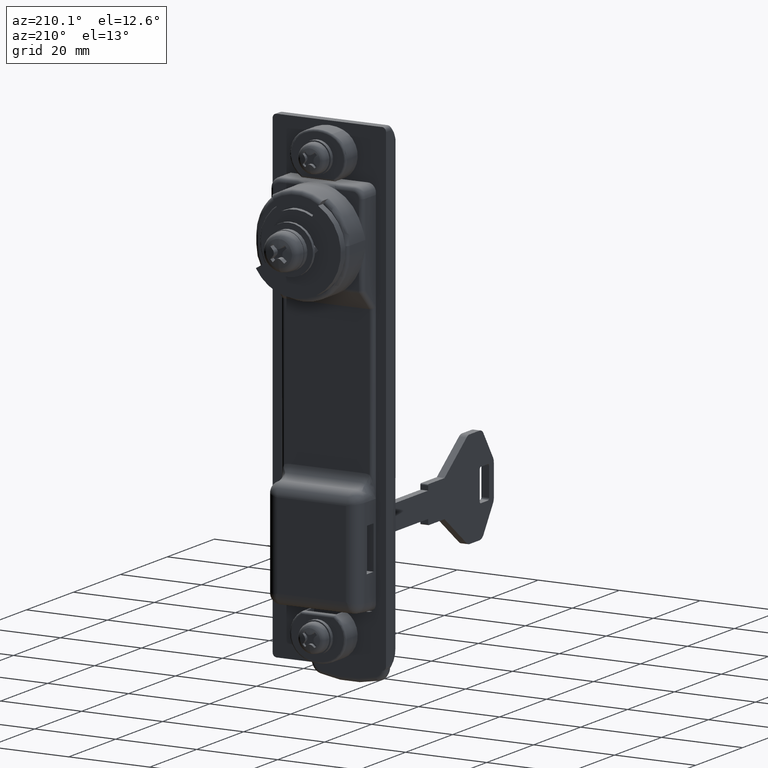
[diagram: clean part render]
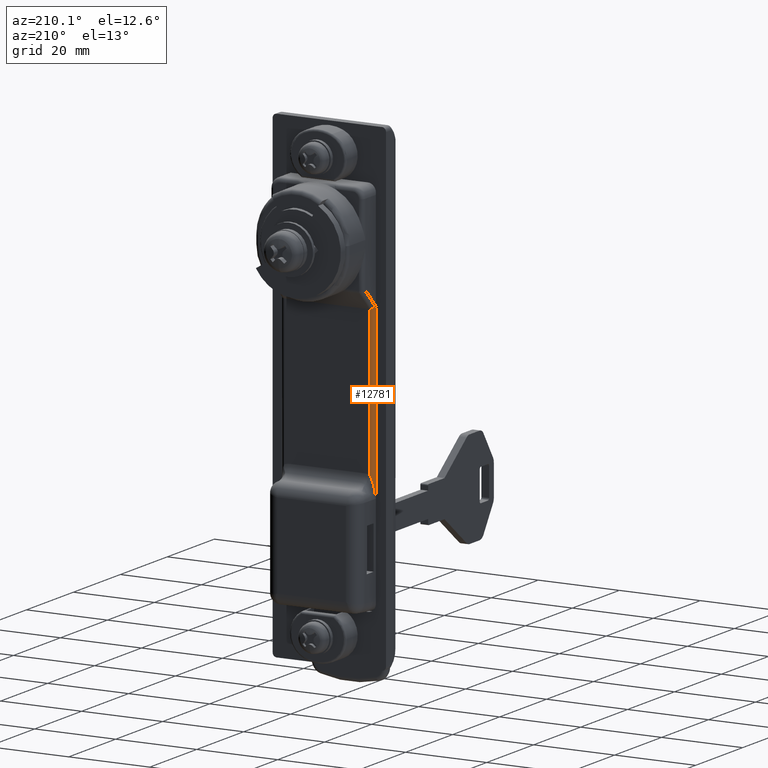
[diagram: same view with one face highlighted and labeled with its STEP entity id]
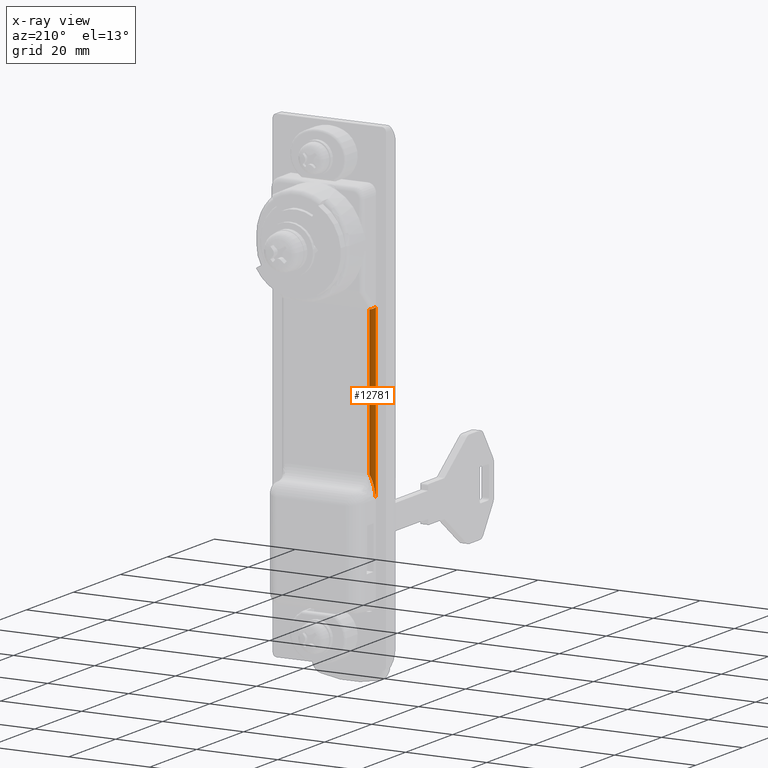
[diagram: x-ray of the same camera — body ghosted, the highlighted face saturated]
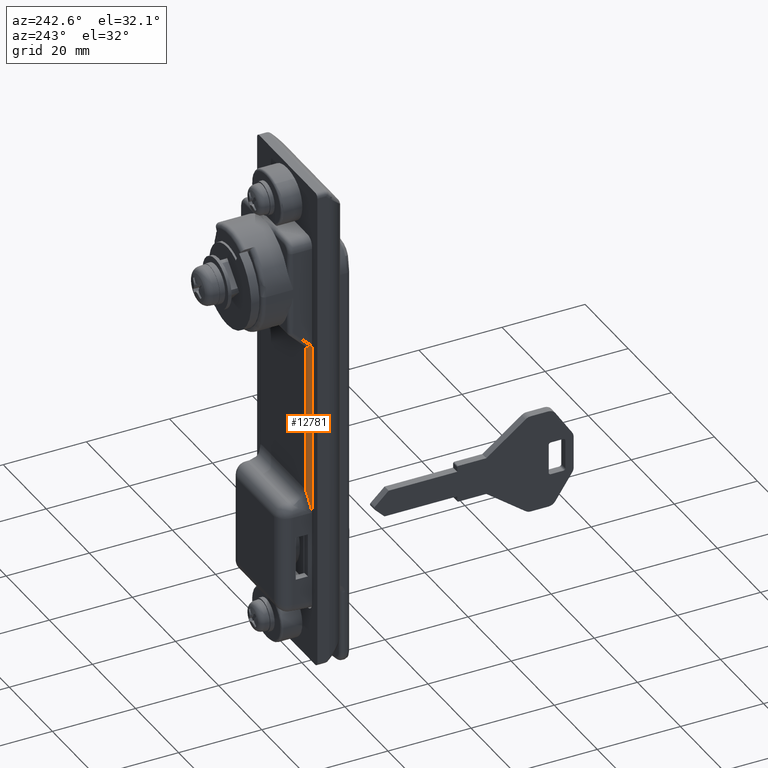
[diagram: same view with one face highlighted and labeled with its STEP entity id]
A machine part, auxiliary view. The second image highlights one B-rep face of the part: STEP entity #12781.
The next image is the same camera in x-ray: the body ghosted, the highlighted face saturated — about 0% of this face is hidden behind the body in this view.
A second angle (auxiliary view) of the same face is appended — the face is thin or edge-on in the first view.
In plain terms, the highlighted cylindrical surface (edge-blend (fillet) strip) has radius 1 mm, axis along (0, 0, 1).
Its self-contained STEP definition (entity closure, byte-faithful):
#1941 = B_SPLINE_CURVE_WITH_KNOTS ( 'NONE', 3,
 ( #2036, #2035, #2034, #2033, #2032, #2031, #2030, #2029, #2028, #2027, #2026, #2025, #2024, #2023, #2022, #2021 ),
 .UNSPECIFIED., .F., .F.,
 ( 4, 2, 2, 2, 2, 2, 2, 4 ),
 ( 0.0000000000000000000, 0.0003451666084807940100, 0.0006903332169615880200, 0.001380666433923157200, 0.002761332867846298800, 0.004141999301769440500, 0.004832332518731011200, 0.005522665735692581900 ),
 .UNSPECIFIED. ) ;
#1942 = DIRECTION ( 'NONE',  ( 1.000000000000000000, 0.0000000000000000000, 0.0000000000000000000 ) ) ;
#1943 = DIRECTION ( 'NONE',  ( 0.0000000000000000000, 0.0000000000000000000, 1.000000000000000000 ) ) ;
#1944 = CARTESIAN_POINT ( 'NONE',  ( -16.49999999999920100, 10.50000000000000000, -53.99999999998869500 ) ) ;
#1945 = AXIS2_PLACEMENT_3D ( 'NONE', #1944, #1943, #1942 ) ;
#1946 = CYLINDRICAL_SURFACE ( 'NONE', #1945, 1.000000000000000900 ) ;
#1947 = FACE_OUTER_BOUND ( 'NONE', #12782, .T. ) ;
#2021 = CARTESIAN_POINT ( 'NONE',  ( -16.49999999999920100, 11.50000000000000000, -56.49999999998869500 ) ) ;
#2022 = CARTESIAN_POINT ( 'NONE',  ( -16.45201853504928700, 11.50000000000000000, -56.27494691660308500 ) ) ;
#2023 = CARTESIAN_POINT ( 'NONE',  ( -16.40349598685585900, 11.49651994399057600, -56.04735850202734300 ) ) ;
#2024 = CARTESIAN_POINT ( 'NONE',  ( -16.30725553604736400, 11.48245335509614200, -55.59496858964386200 ) ) ;
#2025 = CARTESIAN_POINT ( 'NONE',  ( -16.25929079596236400, 11.47187425106661800, -55.36901571028513300 ) ) ;
#2026 = CARTESIAN_POINT ( 'NONE',  ( -16.11622597313031900, 11.42878383894113300, -54.69186257180442800 ) ) ;
#2027 = CARTESIAN_POINT ( 'NONE',  ( -16.02181957658981700, 11.38531396471272400, -54.24118404536052700 ) ) ;
#2028 = CARTESIAN_POINT ( 'NONE',  ( -15.83852843561751900, 11.25821679153246200, -53.34252863741024000 ) ) ;
#2029 = CARTESIAN_POINT ( 'NONE',  ( -15.74951224143548600, 11.17636426919900600, -52.89628863103502700 ) ) ;
#2030 = CARTESIAN_POINT ( 'NONE',  ( -15.62933363390922300, 10.99710683364890900, -52.23543367442628200 ) ) ;
#2031 = CARTESIAN_POINT ( 'NONE',  ( -15.59165097432712200, 10.92833137264998200, -52.01773175190524500 ) ) ;
#2032 = CARTESIAN_POINT ( 'NONE',  ( -15.54426402076173700, 10.79784252097372600, -51.69915898922860000 ) ) ;
#2033 = CARTESIAN_POINT ( 'NONE',  ( -15.53003573429299600, 10.74967070722284900, -51.59434832315238100 ) ) ;
#2034 = CARTESIAN_POINT ( 'NONE',  ( -15.50814994186524700, 10.63928245033674700, -51.39343058067656500 ) ) ;
#2035 = CARTESIAN_POINT ( 'NONE',  ( -15.49999999999920100, 10.57765816910793400, -51.29655346474472600 ) ) ;
#2036 = CARTESIAN_POINT ( 'NONE',  ( -15.49999999999920100, 10.50000000000000000, -51.20849737785950100 ) ) ;
#2090 = CARTESIAN_POINT ( 'NONE',  ( -15.49999999999920100, 10.50000000000000000, -14.95248169645680000 ) ) ;
#2091 = CARTESIAN_POINT ( 'NONE',  ( -15.49999999999919900, 11.08578643762691000, -14.95248169645679500 ) ) ;
#2092 = CARTESIAN_POINT ( 'NONE',  ( -15.91421356237229800, 11.50000000000000400, -14.78090882120298100 ) ) ;
#2093 = CARTESIAN_POINT ( 'NONE',  ( -16.49999999999920100, 11.50000000000000000, -14.53826813408368000 ) ) ;
#2094 =( BOUNDED_CURVE ( )  B_SPLINE_CURVE ( 3, ( #2093, #2092, #2091, #2090 ),
 .UNSPECIFIED., .F., .T. ) 
 B_SPLINE_CURVE_WITH_KNOTS ( ( 4, 4 ),
 ( 1.570796326794889500, 3.141592653589793100 ),
 .UNSPECIFIED. ) 
 CURVE ( )  GEOMETRIC_REPRESENTATION_ITEM ( )  RATIONAL_B_SPLINE_CURVE ( ( 1.000000000000000000, 0.8047378541243632700, 0.8047378541243632700, 1.000000000000000000 ) ) 
 REPRESENTATION_ITEM ( '' )  );
#11964 = VERTEX_POINT ( 'NONE', #17310 ) ;
#11966 = EDGE_CURVE ( 'NONE', #11964, #11967, #17305, .T. ) ;
#11967 = VERTEX_POINT ( 'NONE', #17297 ) ;
#12766 = EDGE_CURVE ( 'NONE', #24041, #11967, #2094, .T. ) ;
#12781 = ADVANCED_FACE ( 'NONE', ( #1947 ), #1946, .T. ) ;
#12782 = EDGE_LOOP ( 'NONE', ( #12783, #12784, #12786, #12787 ) ) ;
#12783 = ORIENTED_EDGE ( 'NONE', *, *, #11966, .F. ) ;
#12784 = ORIENTED_EDGE ( 'NONE', *, *, #12785, .T. ) ;
#12785 = EDGE_CURVE ( 'NONE', #11964, #24044, #1941, .T. ) ;
#12786 = ORIENTED_EDGE ( 'NONE', *, *, #24043, .F. ) ;
#12787 = ORIENTED_EDGE ( 'NONE', *, *, #12766, .T. ) ;
#17297 = CARTESIAN_POINT ( 'NONE',  ( -15.49999999999920100, 10.50000000000000000, -14.95248169645680000 ) ) ;
#17299 = DIRECTION ( 'NONE',  ( 0.0000000000000000000, 0.0000000000000000000, 1.000000000000000000 ) ) ;
#17301 = VECTOR ( 'NONE', #17299, 1000.000000000000000 ) ;
#17303 = CARTESIAN_POINT ( 'NONE',  ( -15.49999999999920100, 10.50000000000000000, -14.95248169645680000 ) ) ;
#17305 = LINE ( 'NONE', #17303, #17301 ) ;
#17310 = CARTESIAN_POINT ( 'NONE',  ( -15.49999999999920100, 10.50000000000000000, -51.20849737785950100 ) ) ;
#24041 = VERTEX_POINT ( 'NONE', #27961 ) ;
#24043 = EDGE_CURVE ( 'NONE', #24041, #24044, #27959, .T. ) ;
#24044 = VERTEX_POINT ( 'NONE', #27955 ) ;
#27955 = CARTESIAN_POINT ( 'NONE',  ( -16.49999999999920100, 11.50000000000000000, -56.49999999998869500 ) ) ;
#27956 = DIRECTION ( 'NONE',  ( 0.0000000000000000000, 0.0000000000000000000, -1.000000000000000000 ) ) ;
#27957 = VECTOR ( 'NONE', #27956, 1000.000000000000000 ) ;
#27958 = CARTESIAN_POINT ( 'NONE',  ( -16.49999999999920100, 11.50000000000000000, -56.49999999998869500 ) ) ;
#27959 = LINE ( 'NONE', #27958, #27957 ) ;
#27961 = CARTESIAN_POINT ( 'NONE',  ( -16.49999999999920100, 11.50000000000000000, -14.53826813408368000 ) ) ;